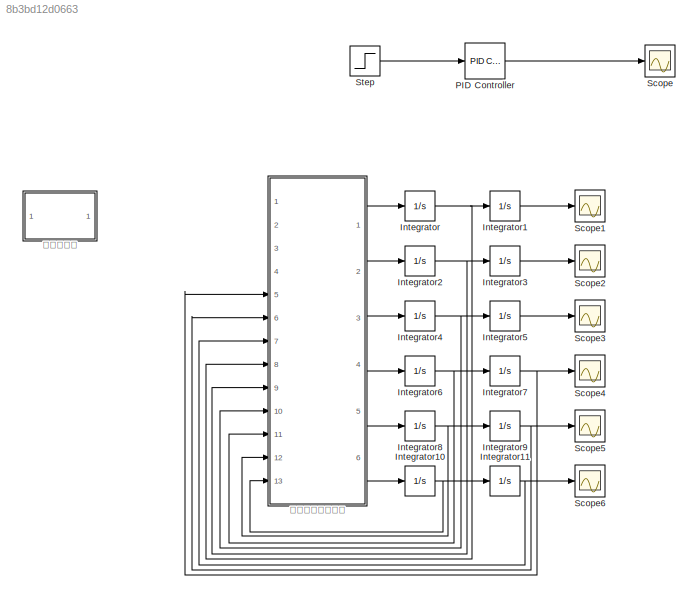
MODEL slx_8b3bd12d0663
KIND model
CONFIG AbsTol = auto
CONFIG FixedStep = auto
CONFIG MaxStep = auto
CONFIG MinStep = auto
CONFIG RelTol = 1e-3
CONFIG SampleTimeConstraint = Unconstrained
CONFIG Solver = VariableStepAuto
CONFIG SolverMode = Auto
CONFIG SolverName = VariableStepAuto
CONFIG StartTime = 0.0
CONFIG StopTime = 10.0
BLOCK [Integrator] Integrator
  Ports = [1, 1]
BLOCK [Integrator] Integrator1
  Ports = [1, 1]
BLOCK [Integrator] Integrator10
  Ports = [1, 1]
BLOCK [Integrator] Integrator11
  Ports = [1, 1]
BLOCK [Integrator] Integrator2
  Ports = [1, 1]
BLOCK [Integrator] Integrator3
  Ports = [1, 1]
BLOCK [Integrator] Integrator4
  Ports = [1, 1]
BLOCK [Integrator] Integrator5
  Ports = [1, 1]
BLOCK [Integrator] Integrator6
  Ports = [1, 1]
BLOCK [Integrator] Integrator7
  Ports = [1, 1]
BLOCK [Integrator] Integrator8
  Ports = [1, 1]
BLOCK [Integrator] Integrator9
  Ports = [1, 1]
BLOCK [Reference] PID Controller  REF=simulink/Continuous/PID Controller
  Ports = [1, 1]
  SourceBlock = simulink/Continuous/PID Controller
  SourceType = PID 1dof
BLOCK [Scope] Scope
  Ports = [1]
  ScopeSpecificationString = Simulink.scopes.TimeScopeBlockCfg('CurrentConfiguration', extmgr.ConfigurationSet(extmgr.Configuration('Core','General UI',true),extmgr.Configuration('Core','Source UI',true),extmgr.Configuration('Sources','WiredSimulink',true),extmgr.Configuration('Visuals','Time Domain',true,'SerializedDisplays',{struct('MinYLimReal','-1.25','MaxYLimReal','11.25','YLabelReal','','MinYLimMag','0.00000','MaxYLimMa...<+1320ch>
BLOCK [Scope] Scope1
  Ports = [1]
  ScopeSpecificationString = C++SS(StrPVP('SaveName','ScopeData1'),StrPVP('LimitDataPoints','on'),StrPVP('DataFormat','Array'),StrPVP('Decimation','1'),StrPVP('BlockParamSampleInput','off'))
BLOCK [Scope] Scope2
  Ports = [1]
  ScopeSpecificationString = C++SS(StrPVP('SaveName','ScopeData1'),StrPVP('SaveName','ScopeData2'),StrPVP('LimitDataPoints','on'),StrPVP('DataFormat','Array'),StrPVP('Decimation','1'),StrPVP('BlockParamSampleInput','off'))
BLOCK [Scope] Scope3
  Ports = [1]
  ScopeSpecificationString = C++SS(StrPVP('SaveName','ScopeData1'),StrPVP('SaveName','ScopeData2'),StrPVP('SaveName','ScopeData3'),StrPVP('LimitDataPoints','on'),StrPVP('DataFormat','Array'),StrPVP('Decimation','1'),StrPVP('BlockParamSampleInput','off'))
BLOCK [Scope] Scope4
  Ports = [1]
  ScopeSpecificationString = C++SS(StrPVP('SaveName','ScopeData1'),StrPVP('SaveName','ScopeData2'),StrPVP('SaveName','ScopeData3'),StrPVP('SaveName','ScopeData4'),StrPVP('LimitDataPoints','on'),StrPVP('DataFormat','Array'),StrPVP('Decimation','1'),StrPVP('BlockParamSampleInput','off'))
BLOCK [Scope] Scope5
  Ports = [1]
  ScopeSpecificationString = C++SS(StrPVP('SaveName','ScopeData1'),StrPVP('SaveName','ScopeData2'),StrPVP('SaveName','ScopeData3'),StrPVP('SaveName','ScopeData4'),StrPVP('SaveName','ScopeData5'),StrPVP('LimitDataPoints','on'),StrPVP('DataFormat','Array'),StrPVP('Decimation','1'),StrPVP('BlockParamSampleInput','off'))
BLOCK [Scope] Scope6
  Ports = [1]
  ScopeSpecificationString = C++SS(StrPVP('SaveName','ScopeData1'),StrPVP('SaveName','ScopeData2'),StrPVP('SaveName','ScopeData3'),StrPVP('SaveName','ScopeData4'),StrPVP('SaveName','ScopeData5'),StrPVP('SaveName','ScopeData6'),StrPVP('LimitDataPoints','on'),StrPVP('DataFormat','Array'),StrPVP('Decimation','1'),StrPVP('BlockParamSampleInput','off'))
BLOCK [Step] Step
  SampleTime = 0
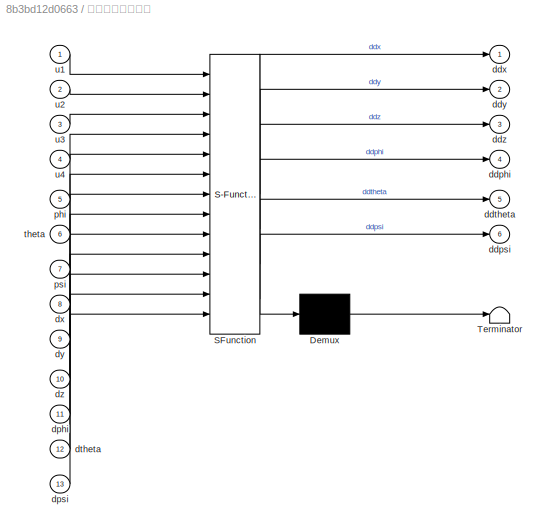
BLOCK [SubSystem] 四旋翼无人机模型
  ErrorFcn = Stateflow.Translate.translate
  PermitHierarchicalResolution = ExplicitOnly
  Ports = [13, 6]
  RequestExecContextInheritance = off
  SFBlockType = MATLAB Function
  TreatAsAtomicUnit = on
  Variant = off
BLOCK [Demux] 四旋翼无人机模型/ Demux 
  Outputs = 1
  Ports = [1, 1]
BLOCK [S-Function] 四旋翼无人机模型/ SFunction 
  EnableBusSupport = on
  FunctionName = sf_sfun
  PortCounts = [13 7]
  Ports = [13, 7]
  SFunctionDeploymentMode = off
  Tag = Stateflow S-Function GS 2
BLOCK [Terminator] 四旋翼无人机模型/ Terminator 
BLOCK [Outport] 四旋翼无人机模型/ddphi
  IconDisplay = Port number
  Port = 4
BLOCK [Outport] 四旋翼无人机模型/ddpsi
  IconDisplay = Port number
  Port = 6
BLOCK [Outport] 四旋翼无人机模型/ddtheta
  IconDisplay = Port number
  Port = 5
BLOCK [Outport] 四旋翼无人机模型/ddx
  IconDisplay = Port number
BLOCK [Outport] 四旋翼无人机模型/ddy
  IconDisplay = Port number
  Port = 2
BLOCK [Outport] 四旋翼无人机模型/ddz
  IconDisplay = Port number
  Port = 3
BLOCK [Inport] 四旋翼无人机模型/dphi
  IconDisplay = Port number
  Port = 11
BLOCK [Inport] 四旋翼无人机模型/dpsi
  IconDisplay = Port number
  Port = 13
BLOCK [Inport] 四旋翼无人机模型/dtheta
  IconDisplay = Port number
  Port = 12
BLOCK [Inport] 四旋翼无人机模型/dx
  IconDisplay = Port number
  Port = 8
BLOCK [Inport] 四旋翼无人机模型/dy
  IconDisplay = Port number
  Port = 9
BLOCK [Inport] 四旋翼无人机模型/dz
  IconDisplay = Port number
  Port = 10
BLOCK [Inport] 四旋翼无人机模型/phi
  IconDisplay = Port number
  Port = 5
BLOCK [Inport] 四旋翼无人机模型/psi
  IconDisplay = Port number
  Port = 7
BLOCK [Inport] 四旋翼无人机模型/theta
  IconDisplay = Port number
  Port = 6
BLOCK [Inport] 四旋翼无人机模型/u1
  IconDisplay = Port number
BLOCK [Inport] 四旋翼无人机模型/u2
  IconDisplay = Port number
  Port = 2
BLOCK [Inport] 四旋翼无人机模型/u3
  IconDisplay = Port number
  Port = 3
BLOCK [Inport] 四旋翼无人机模型/u4
  IconDisplay = Port number
  Port = 4
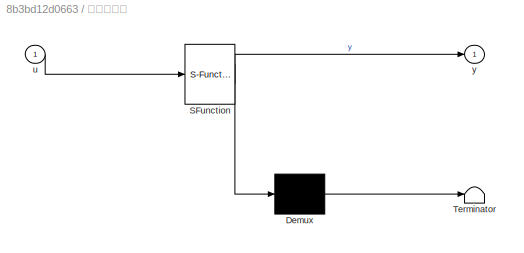
BLOCK [SubSystem] 姿态解算器 
  ErrorFcn = Stateflow.Translate.translate
  PermitHierarchicalResolution = ExplicitOnly
  Ports = [1, 1]
  RequestExecContextInheritance = off
  SFBlockType = MATLAB Function
  TreatAsAtomicUnit = on
  Variant = off
BLOCK [Demux] 姿态解算器 / Demux 
  Outputs = 1
  Ports = [1, 1]
BLOCK [S-Function] 姿态解算器 / SFunction 
  EnableBusSupport = off
  FunctionName = sf_sfun
  PortCounts = [1 2]
  Ports = [1, 2]
  SFunctionDeploymentMode = off
  Tag = Stateflow S-Function GS 1
BLOCK [Terminator] 姿态解算器 / Terminator 
BLOCK [Inport] 姿态解算器 /u
  IconDisplay = Port number
BLOCK [Outport] 姿态解算器 /y
  IconDisplay = Port number
NET Integrator10:1 -> Integrator11:1, 四旋翼无人机模型:13
NET Integrator11:1 -> Scope6:1, 四旋翼无人机模型:7
LINE Integrator1:1 -> Scope1:1
NET Integrator2:1 -> Integrator3:1, 四旋翼无人机模型:9
LINE Integrator3:1 -> Scope2:1
NET Integrator4:1 -> Integrator5:1, 四旋翼无人机模型:10
LINE Integrator5:1 -> Scope3:1
NET Integrator6:1 -> Integrator7:1, 四旋翼无人机模型:11
NET Integrator7:1 -> Scope4:1, 四旋翼无人机模型:5
NET Integrator8:1 -> Integrator9:1, 四旋翼无人机模型:12
NET Integrator9:1 -> Scope5:1, 四旋翼无人机模型:6
NET Integrator:1 -> Integrator1:1, 四旋翼无人机模型:8
LINE PID Controller:1 -> Scope:1
LINE Step:1 -> PID Controller:1
LINE 四旋翼无人机模型:1 -> Integrator:1
LINE 四旋翼无人机模型:2 -> Integrator2:1
LINE 四旋翼无人机模型:3 -> Integrator4:1
LINE 四旋翼无人机模型:4 -> Integrator6:1
LINE 四旋翼无人机模型:5 -> Integrator8:1
LINE 四旋翼无人机模型:6 -> Integrator10:1
note: NET lines group one-source signal fan-out (src -> all destinations, sorted); 1:1 wires keep LINE
CHART 姿态解算器
 states=1 transitions=1
  STATE_LABEL 'eML_blk_kernel()'
  STATE_LABEL 'SCRIPT:\nfunction y = fcn(u)\n%#codegen\n\ny = u;'
CHART 四旋翼无人机模型 states=1 transitions=1
  STATE_LABEL 'eML_blk_kernel()'
  STATE_LABEL 'SCRIPT:\nfunction [ddx,ddy,ddz,ddphi,ddtheta,ddpsi] = fcn(u1,u2,u3,u4,phi,theta,psi,dx,dy,dz,dphi,dtheta,dpsi)\n%%四旋翼无人机参数设置\nm = 2; l = 0.2; g = 9.8;\nK1 = K2 = K3 = 0.01;\nK4 = K5 = K6 = 0.012;\nI1 = I2 = I3 = 1.25;\nd4 = d5 = d6 = 0.01;\n\n%%动力学方程\nddx = u1(cos(phi)*sin(theta)*cos(psi)+sin(phi)*sin(psi))-K1*dx/m;\nddy = u1(sin(phi)*sin(theta)*cos(psi)-cos(phi)*sin(psi))-K2*dy/m;\nddz = u1*cos(phi)*cos(psi)...<+99ch>'
